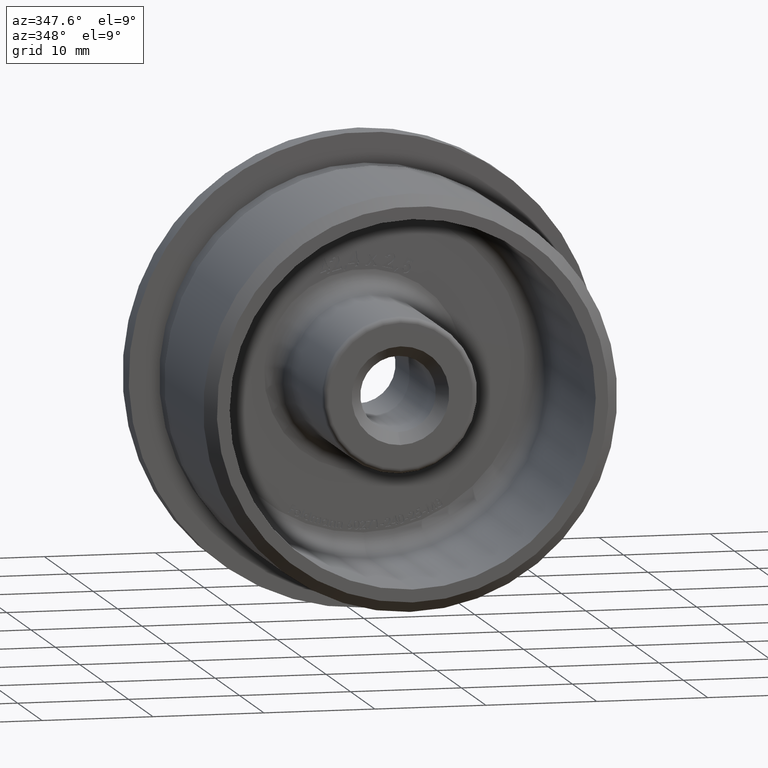
[diagram: clean part render]
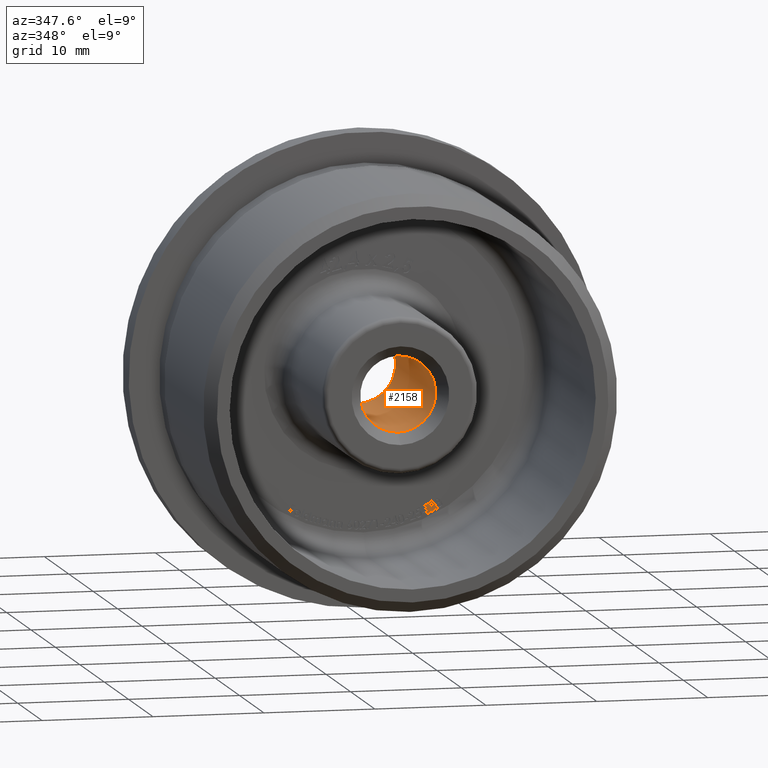
[diagram: same view with one face highlighted and labeled with its STEP entity id]
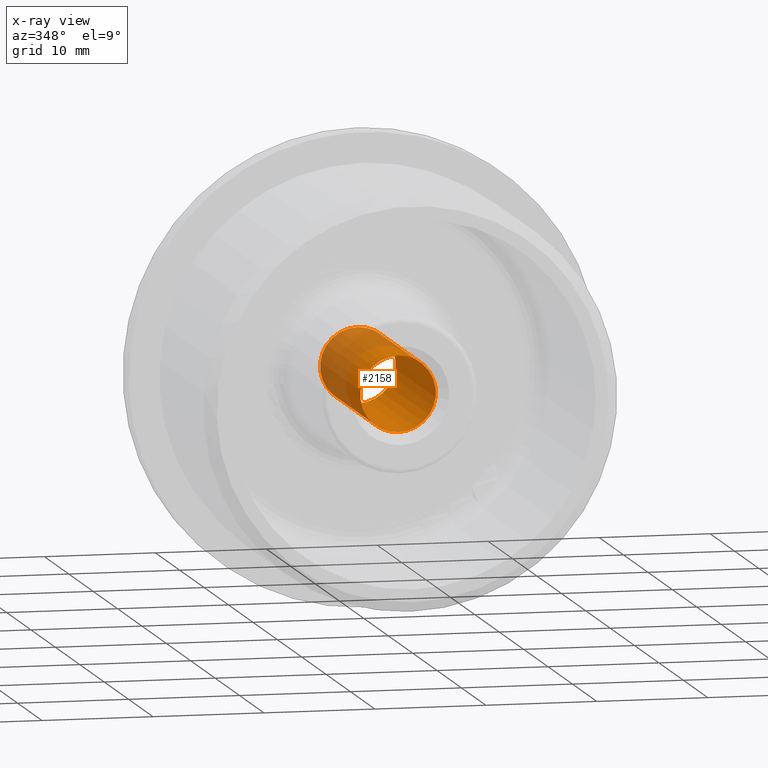
[diagram: x-ray of the same camera — body ghosted, the highlighted face saturated]
A machine part, auxiliary view. The second image highlights one B-rep face of the part: STEP entity #2158.
The next image is the same camera in x-ray: the body ghosted, the highlighted face saturated — about 34% of this face is hidden behind the body in this view.
In plain terms, the highlighted cylindrical surface (bore or boss wall) has radius 3.4 mm, axis along (-0, 1, -0).
Its self-contained STEP definition (entity closure, byte-faithful):
#281 = DIRECTION ( 'NONE',  ( -0.0000000000000000000, 1.000000000000000000, -0.0000000000000000000 ) ) ;
#334 = CIRCLE ( 'NONE', #16691, 3.399999999999995900 ) ;
#800 = EDGE_CURVE ( 'NONE', #4665, #4665, #10748, .T. ) ;
#2057 = CARTESIAN_POINT ( 'NONE',  ( 0.0000000000000000000, 5.999999999999981300, 0.0000000000000000000 ) ) ;
#2158 = ADVANCED_FACE ( 'NONE', ( #11889, #10028 ), #15850, .F. ) ;
#3497 = VERTEX_POINT ( 'NONE', #17726 ) ;
#4665 = VERTEX_POINT ( 'NONE', #17952 ) ;
#4938 = AXIS2_PLACEMENT_3D ( 'NONE', #2057, #6688, #12675 ) ;
#5502 = DIRECTION ( 'NONE',  ( 0.0000000000000000000, 1.000000000000000000, 0.0000000000000000000 ) ) ;
#5627 = CARTESIAN_POINT ( 'NONE',  ( 0.0000000000000000000, 22.49999999999999600, 0.0000000000000000000 ) ) ;
#6688 = DIRECTION ( 'NONE',  ( 0.0000000000000000000, -1.000000000000000000, 0.0000000000000000000 ) ) ;
#9223 = CARTESIAN_POINT ( 'NONE',  ( 0.0000000000000000000, 23.50000000000000000, 0.0000000000000000000 ) ) ;
#9766 = EDGE_LOOP ( 'NONE', ( #13445 ) ) ;
#10028 = FACE_OUTER_BOUND ( 'NONE', #9766, .T. ) ;
#10748 = CIRCLE ( 'NONE', #4938, 3.399999999999995900 ) ;
#10882 = AXIS2_PLACEMENT_3D ( 'NONE', #9223, #281, #13451 ) ;
#11889 = FACE_OUTER_BOUND ( 'NONE', #11953, .T. ) ;
#11953 = EDGE_LOOP ( 'NONE', ( #14949 ) ) ;
#12675 = DIRECTION ( 'NONE',  ( 0.0000000000000000000, 0.0000000000000000000, -1.000000000000000000 ) ) ;
#13445 = ORIENTED_EDGE ( 'NONE', *, *, #800, .T. ) ;
#13451 = DIRECTION ( 'NONE',  ( 0.0000000000000000000, 0.0000000000000000000, 1.000000000000000000 ) ) ;
#14748 = EDGE_CURVE ( 'NONE', #3497, #3497, #334, .T. ) ;
#14949 = ORIENTED_EDGE ( 'NONE', *, *, #14748, .T. ) ;
#15850 = CYLINDRICAL_SURFACE ( 'NONE', #10882, 3.399999999999995900 ) ;
#16001 = DIRECTION ( 'NONE',  ( 0.0000000000000000000, 0.0000000000000000000, 1.000000000000000000 ) ) ;
#16691 = AXIS2_PLACEMENT_3D ( 'NONE', #5627, #5502, #16001 ) ;
#17726 = CARTESIAN_POINT ( 'NONE',  ( 0.0000000000000000000, 22.49999999999999600, 3.399999999999995900 ) ) ;
#17952 = CARTESIAN_POINT ( 'NONE',  ( 0.0000000000000000000, 5.999999999999981300, -3.399999999999995900 ) ) ;